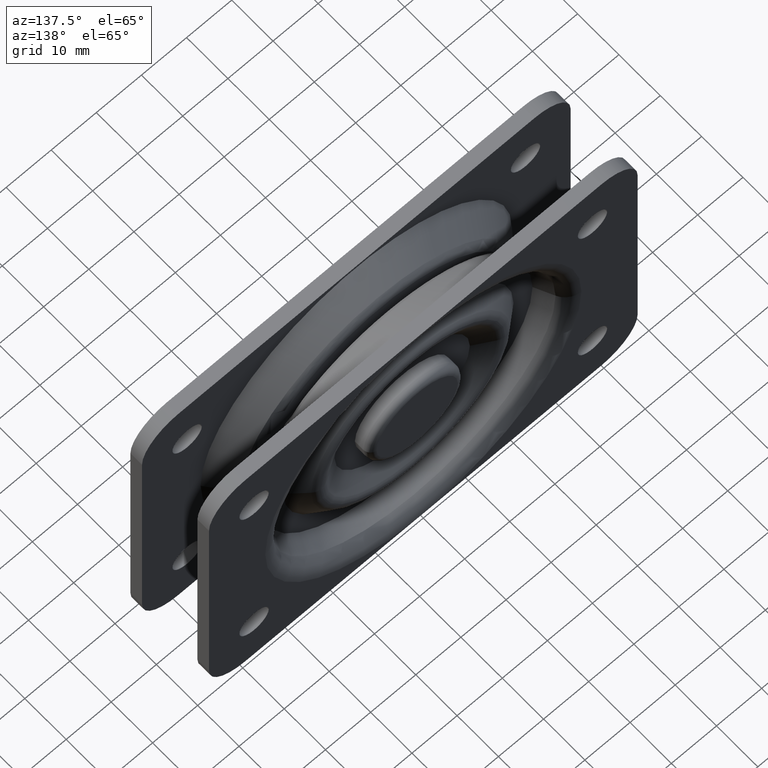
[diagram: clean part render]
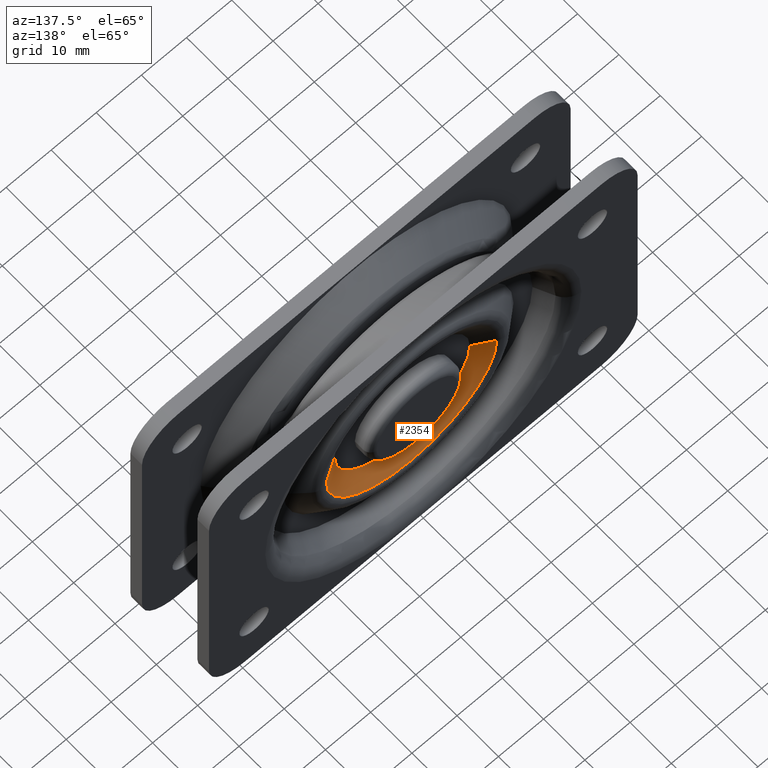
[diagram: same view with one face highlighted and labeled with its STEP entity id]
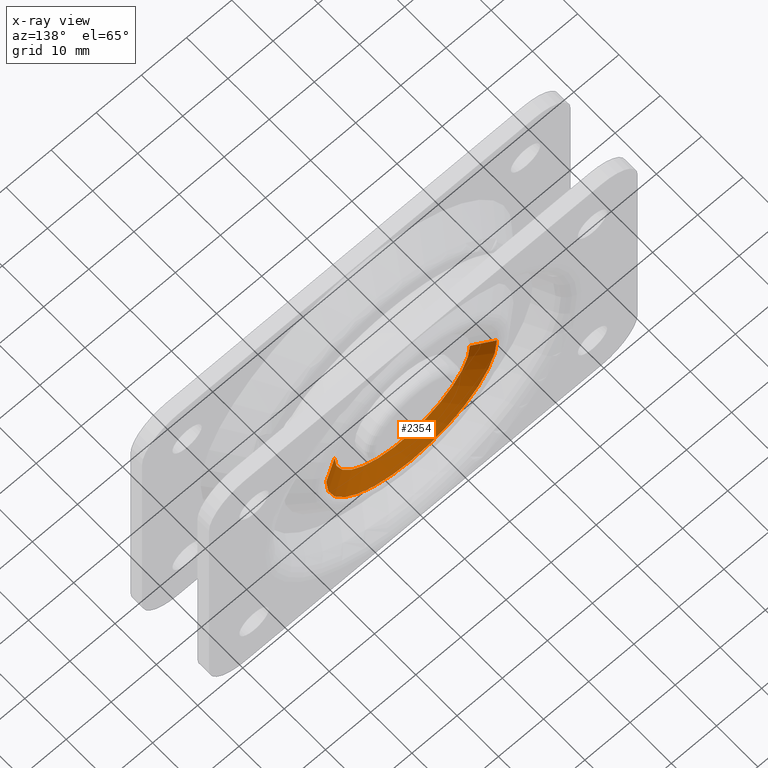
[diagram: x-ray of the same camera — body ghosted, the highlighted face saturated]
A machine part, auxiliary view. The second image highlights one B-rep face of the part: STEP entity #2354.
The next image is the same camera in x-ray: the body ghosted, the highlighted face saturated — about 0% of this face is hidden behind the body in this view.
In plain terms, the highlighted conical surface has half-angle 60 deg.
Its self-contained STEP definition (entity closure, byte-faithful):
#111 = DIRECTION ( 'NONE',  ( -1.000000000000000000, 0.0000000000000000000, 0.0000000000000000000 ) ) ;
#257 = VECTOR ( 'NONE', #3554, 1000.000000000000000 ) ;
#354 = ORIENTED_EDGE ( 'NONE', *, *, #2419, .T. ) ;
#355 = LINE ( 'NONE', #1149, #4578 ) ;
#390 = CIRCLE ( 'NONE', #4728, 18.91987298107781257 ) ;
#619 = CARTESIAN_POINT ( 'NONE',  ( 19.50000000000000355, -2.500000000000000000, 2.388061258337339333E-15 ) ) ;
#1082 = DIRECTION ( 'NONE',  ( -0.8660254037844398178, 0.4999999999999978906, 0.0000000000000000000 ) ) ;
#1136 = VERTEX_POINT ( 'NONE', #1761 ) ;
#1149 = CARTESIAN_POINT ( 'NONE',  ( -19.50000000000000355, -2.500000000000000000, 0.0000000000000000000 ) ) ;
#1194 = CARTESIAN_POINT ( 'NONE',  ( 0.0000000000000000000, -5.100000000000000533, 0.0000000000000000000 ) ) ;
#1477 = AXIS2_PLACEMENT_3D ( 'NONE', #1194, #3815, #1925 ) ;
#1506 = CONICAL_SURFACE ( 'NONE', #3328, 19.50000000000000355, 1.047197551196600074 ) ;
#1610 = CARTESIAN_POINT ( 'NONE',  ( 0.0000000000000000000, -2.834936490538900955, 0.0000000000000000000 ) ) ;
#1684 = VERTEX_POINT ( 'NONE', #1865 ) ;
#1761 = CARTESIAN_POINT ( 'NONE',  ( -14.99666790032089914, -5.100000000000000533, 0.0000000000000000000 ) ) ;
#1825 = EDGE_CURVE ( 'NONE', #3802, #1136, #4268, .T. ) ;
#1865 = CARTESIAN_POINT ( 'NONE',  ( -18.91987298107781257, -2.834936490538900955, 0.0000000000000000000 ) ) ;
#1925 = DIRECTION ( 'NONE',  ( -1.000000000000000000, 0.0000000000000000000, 0.0000000000000000000 ) ) ;
#1931 = EDGE_CURVE ( 'NONE', #4392, #1684, #390, .T. ) ;
#1933 = ORIENTED_EDGE ( 'NONE', *, *, #1825, .F. ) ;
#2017 = DIRECTION ( 'NONE',  ( -1.000000000000000000, 0.0000000000000000000, 0.0000000000000000000 ) ) ;
#2326 = DIRECTION ( 'NONE',  ( 0.0000000000000000000, 1.000000000000000000, 0.0000000000000000000 ) ) ;
#2354 = ADVANCED_FACE ( 'NONE', ( #4258 ), #1506, .F. ) ;
#2419 = EDGE_CURVE ( 'NONE', #3802, #4392, #3963, .T. ) ;
#2788 = ORIENTED_EDGE ( 'NONE', *, *, #1931, .T. ) ;
#2964 = CARTESIAN_POINT ( 'NONE',  ( 18.91987298107780902, -2.834936490538900955, 2.393556613601852913E-15 ) ) ;
#3328 = AXIS2_PLACEMENT_3D ( 'NONE', #4266, #3919, #111 ) ;
#3454 = ORIENTED_EDGE ( 'NONE', *, *, #3896, .F. ) ;
#3554 = DIRECTION ( 'NONE',  ( 0.8660254037844398178, 0.4999999999999978906, 1.060575238724908271E-16 ) ) ;
#3586 = EDGE_LOOP ( 'NONE', ( #1933, #354, #2788, #3454 ) ) ;
#3802 = VERTEX_POINT ( 'NONE', #4796 ) ;
#3815 = DIRECTION ( 'NONE',  ( 0.0000000000000000000, 1.000000000000000000, 0.0000000000000000000 ) ) ;
#3896 = EDGE_CURVE ( 'NONE', #1136, #1684, #355, .T. ) ;
#3919 = DIRECTION ( 'NONE',  ( 0.0000000000000000000, 1.000000000000000000, 0.0000000000000000000 ) ) ;
#3963 = LINE ( 'NONE', #619, #257 ) ;
#4258 = FACE_OUTER_BOUND ( 'NONE', #3586, .T. ) ;
#4266 = CARTESIAN_POINT ( 'NONE',  ( 0.0000000000000000000, -2.500000000000000000, 0.0000000000000000000 ) ) ;
#4268 = CIRCLE ( 'NONE', #1477, 14.99666790032089914 ) ;
#4392 = VERTEX_POINT ( 'NONE', #2964 ) ;
#4578 = VECTOR ( 'NONE', #1082, 1000.000000000000000 ) ;
#4728 = AXIS2_PLACEMENT_3D ( 'NONE', #1610, #2326, #2017 ) ;
#4796 = CARTESIAN_POINT ( 'NONE',  ( 14.99666790032089558, -5.100000000000000533, 2.076789161427764206E-15 ) ) ;